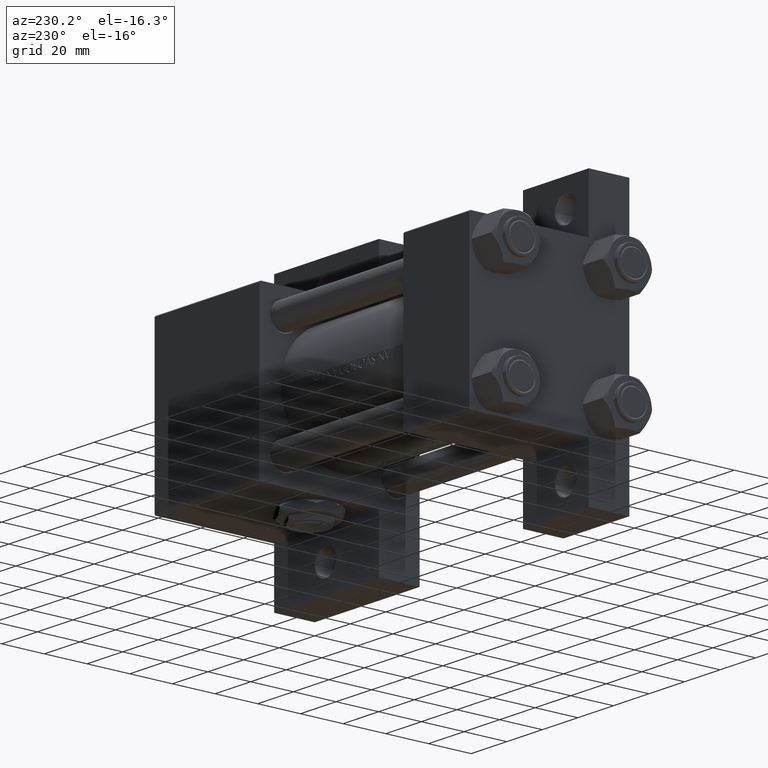
[diagram: clean part render]
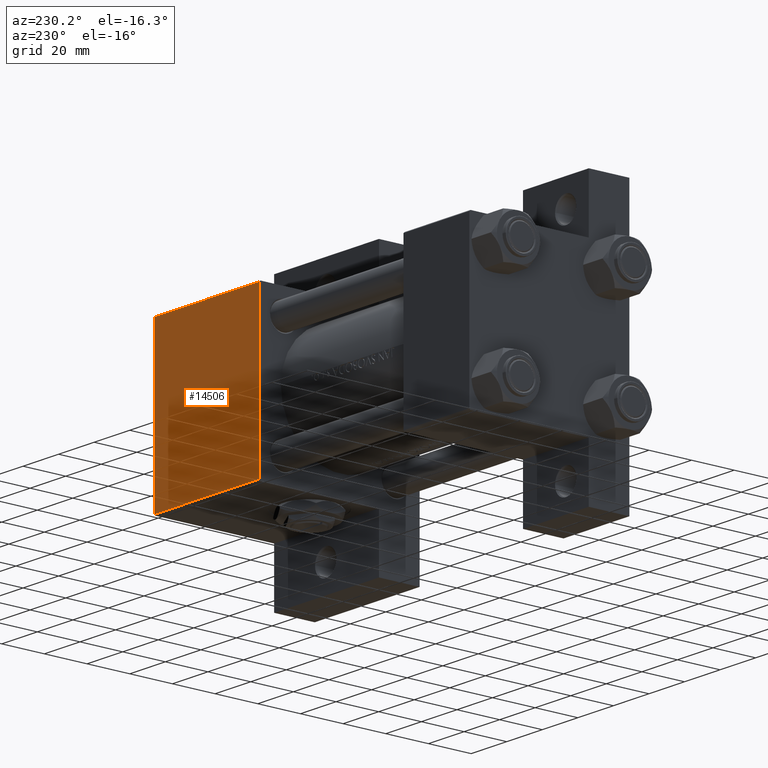
[diagram: same view with one face highlighted and labeled with its STEP entity id]
A machine part, auxiliary view. The second image highlights one B-rep face of the part: STEP entity #14506.
In plain terms, the highlighted planar face has unit normal (0, -1, -0).
Its self-contained STEP definition (entity closure, byte-faithful):
#2524 = VECTOR ( 'NONE', #8805, 1000.000000000000000 ) ;
#4647 = CARTESIAN_POINT ( 'NONE',  ( 118.0000000000000000, -36.99999999999997158, 37.49999999999997868 ) ) ;
#4939 = CARTESIAN_POINT ( 'NONE',  ( 118.0000000000000000, 37.00000000000000000, 37.49999999999999289 ) ) ;
#6097 = LINE ( 'NONE', #17069, #43506 ) ;
#6132 = FACE_OUTER_BOUND ( 'NONE', #41433, .T. ) ;
#6455 = ORIENTED_EDGE ( 'NONE', *, *, #34760, .F. ) ;
#8312 = CARTESIAN_POINT ( 'NONE',  ( 177.0000000000000000, -36.99999999999997158, 37.49999999999997868 ) ) ;
#8805 = DIRECTION ( 'NONE',  ( 1.000000000000000000, 0.000000000000000000, 0.000000000000000000 ) ) ;
#9410 = LINE ( 'NONE', #38799, #12088 ) ;
#9571 = CARTESIAN_POINT ( 'NONE',  ( 177.0000000000000000, 37.00000000000000000, 37.49999999999999289 ) ) ;
#12088 = VECTOR ( 'NONE', #42778, 1000.000000000000000 ) ;
#12125 = ORIENTED_EDGE ( 'NONE', *, *, #34188, .T. ) ;
#12542 = LINE ( 'NONE', #8312, #2524 ) ;
#13519 = AXIS2_PLACEMENT_3D ( 'NONE', #16616, #36257, #24834 ) ;
#14506 = ADVANCED_FACE ( 'NONE', ( #6132 ), #28568, .F. ) ;
#14880 = VERTEX_POINT ( 'NONE', #9571 ) ;
#16616 = CARTESIAN_POINT ( 'NONE',  ( 177.0000000000000000, 37.50000000000000000, 37.49999999999999289 ) ) ;
#17069 = CARTESIAN_POINT ( 'NONE',  ( 118.0000000000000000, 37.50000000000000000, 37.49999999999999289 ) ) ;
#22123 = VECTOR ( 'NONE', #47543, 1000.000000000000000 ) ;
#24834 = DIRECTION ( 'NONE',  ( 0.000000000000000000, 1.000000000000000000, 1.850371707708594316E-16 ) ) ;
#28568 = PLANE ( 'NONE',  #13519 ) ;
#28631 = LINE ( 'NONE', #32352, #22123 ) ;
#28869 = ORIENTED_EDGE ( 'NONE', *, *, #47873, .T. ) ;
#30377 = VERTEX_POINT ( 'NONE', #40456 ) ;
#31078 = ORIENTED_EDGE ( 'NONE', *, *, #47198, .T. ) ;
#31152 = VERTEX_POINT ( 'NONE', #4647 ) ;
#32250 = DIRECTION ( 'NONE',  ( 0.000000000000000000, -1.000000000000000000, -1.850371707708594316E-16 ) ) ;
#32352 = CARTESIAN_POINT ( 'NONE',  ( 177.0000000000000000, 37.50000000000000000, 37.49999999999999289 ) ) ;
#34188 = EDGE_CURVE ( 'NONE', #47105, #31152, #6097, .T. ) ;
#34760 = EDGE_CURVE ( 'NONE', #14880, #30377, #28631, .T. ) ;
#36257 = DIRECTION ( 'NONE',  ( 0.000000000000000000, 1.850371707708594316E-16, -1.000000000000000000 ) ) ;
#38799 = CARTESIAN_POINT ( 'NONE',  ( 118.0000000000000000, 37.00000000000000000, 37.49999999999999289 ) ) ;
#40456 = CARTESIAN_POINT ( 'NONE',  ( 177.0000000000000000, -36.99999999999997158, 37.49999999999997868 ) ) ;
#41433 = EDGE_LOOP ( 'NONE', ( #6455, #31078, #12125, #28869 ) ) ;
#42778 = DIRECTION ( 'NONE',  ( -1.000000000000000000, 0.000000000000000000, 0.000000000000000000 ) ) ;
#43506 = VECTOR ( 'NONE', #32250, 1000.000000000000000 ) ;
#47105 = VERTEX_POINT ( 'NONE', #4939 ) ;
#47198 = EDGE_CURVE ( 'NONE', #14880, #47105, #9410, .T. ) ;
#47543 = DIRECTION ( 'NONE',  ( 0.000000000000000000, -1.000000000000000000, -1.850371707708594316E-16 ) ) ;
#47873 = EDGE_CURVE ( 'NONE', #31152, #30377, #12542, .T. ) ;